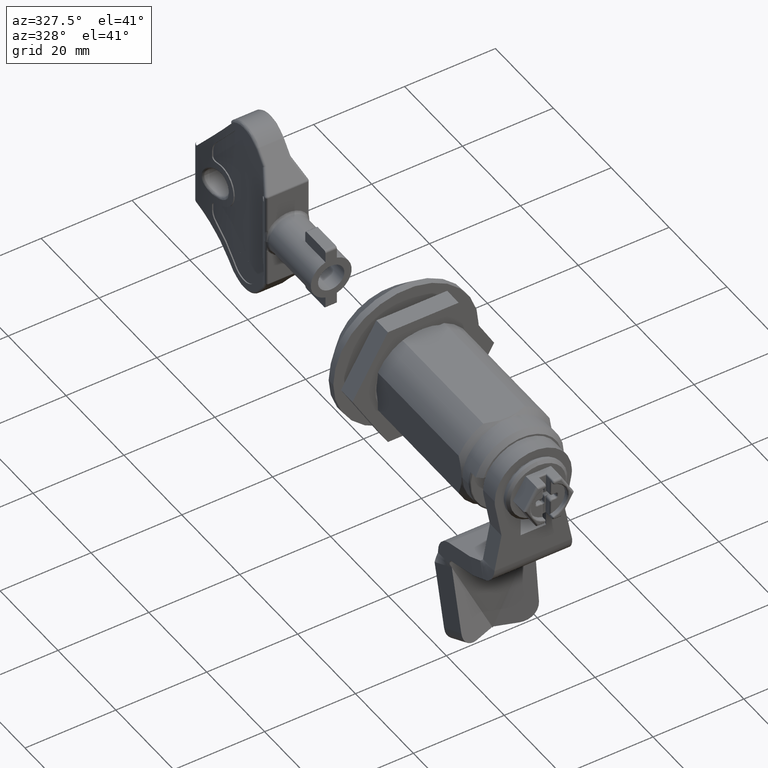
[diagram: clean part render]
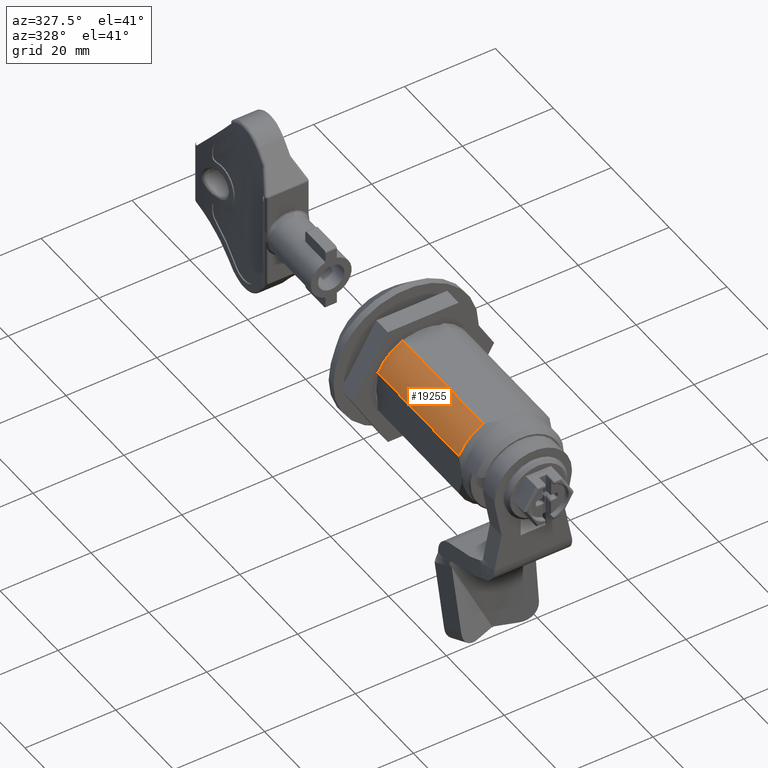
[diagram: same view with one face highlighted and labeled with its STEP entity id]
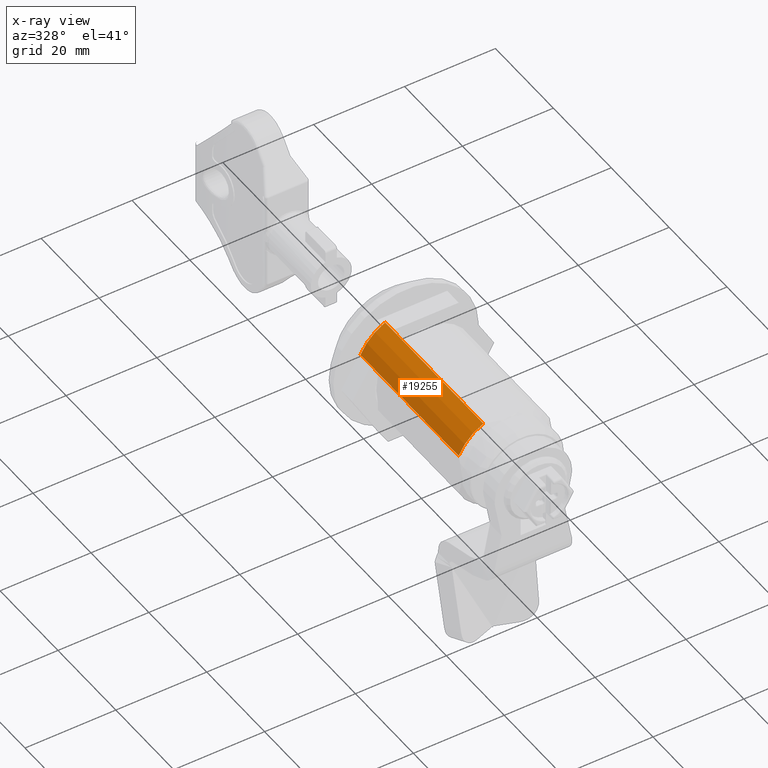
[diagram: x-ray of the same camera — body ghosted, the highlighted face saturated]
A machine part, auxiliary view. The second image highlights one B-rep face of the part: STEP entity #19255.
The next image is the same camera in x-ray: the body ghosted, the highlighted face saturated — about 0% of this face is hidden behind the body in this view.
In plain terms, the highlighted cylindrical surface (partial cylindrical patch) has radius 11 mm, axis along (-0, -1, -0).
Its self-contained STEP definition (entity closure, byte-faithful):
#966 = CARTESIAN_POINT ( 'NONE',  ( 9.993832724293671532, 49.64999999999998437, 1.500000000000003109 ) ) ;
#1082 = VERTEX_POINT ( 'NONE', #12690 ) ;
#1101 = DIRECTION ( 'NONE',  ( -1.000000000000000000, 6.308085367188389255E-16, -3.351170351318831977E-16 ) ) ;
#1498 = CARTESIAN_POINT ( 'NONE',  ( 5.411257029336197455, 15.75000000000031974, 11.49999999999961453 ) ) ;
#1946 = CARTESIAN_POINT ( 'NONE',  ( 5.411257029336986157, 49.64999999999998437, 11.49999999999962164 ) ) ;
#2946 = DIRECTION ( 'NONE',  ( 3.317293887944518980E-16, 1.000000000000000000, 1.941967155733531827E-16 ) ) ;
#3535 = DIRECTION ( 'NONE',  ( 3.317293887944518980E-16, 1.000000000000000000, 1.941967155733531827E-16 ) ) ;
#5222 = DIRECTION ( 'NONE',  ( 0.7071067811865477948, 0.0000000000000000000, -0.7071067811865472397 ) ) ;
#5419 = ORIENTED_EDGE ( 'NONE', *, *, #9924, .F. ) ;
#5707 = AXIS2_PLACEMENT_3D ( 'NONE', #7890, #19733, #5222 ) ;
#7216 = VECTOR ( 'NONE', #16180, 1000.000000000000000 ) ;
#7242 = CARTESIAN_POINT ( 'NONE',  ( 9.993832724293671532, 49.64999999999998437, 1.500000000000003109 ) ) ;
#7418 = VERTEX_POINT ( 'NONE', #1498 ) ;
#7558 = LINE ( 'NONE', #20350, #16219 ) ;
#7890 = CARTESIAN_POINT ( 'NONE',  ( 9.993832724293659098, 15.74999999999998579, 1.499999999999996669 ) ) ;
#9359 = EDGE_LOOP ( 'NONE', ( #13591, #15827, #5419, #12573 ) ) ;
#9512 = DIRECTION ( 'NONE',  ( -1.000000000000000000, 6.308085367188389255E-16, -3.351170351318831977E-16 ) ) ;
#9924 = EDGE_CURVE ( 'NONE', #15676, #1082, #7558, .T. ) ;
#11523 = EDGE_CURVE ( 'NONE', #1082, #12101, #22728, .T. ) ;
#11999 = CARTESIAN_POINT ( 'NONE',  ( 5.411257029336203672, 32.69999999999998863, 11.49999999999925748 ) ) ;
#12101 = VERTEX_POINT ( 'NONE', #1946 ) ;
#12516 = EDGE_CURVE ( 'NONE', #15676, #7418, #20298, .T. ) ;
#12573 = ORIENTED_EDGE ( 'NONE', *, *, #12516, .T. ) ;
#12690 = CARTESIAN_POINT ( 'NONE',  ( -0.006167275706561378690, 49.64999999999998437, 6.082575694955265178 ) ) ;
#13244 = AXIS2_PLACEMENT_3D ( 'NONE', #7242, #2946, #9512 ) ;
#13591 = ORIENTED_EDGE ( 'NONE', *, *, #14175, .F. ) ;
#14175 = EDGE_CURVE ( 'NONE', #12101, #7418, #20745, .T. ) ;
#15367 = DIRECTION ( 'NONE',  ( -3.317293887944518980E-16, -1.000000000000000000, -1.941967155733531827E-16 ) ) ;
#15676 = VERTEX_POINT ( 'NONE', #25636 ) ;
#15827 = ORIENTED_EDGE ( 'NONE', *, *, #11523, .F. ) ;
#16180 = DIRECTION ( 'NONE',  ( -3.317293887944518980E-16, -1.000000000000000000, -1.941967155733531827E-16 ) ) ;
#16219 = VECTOR ( 'NONE', #3535, 1000.000000000000000 ) ;
#19255 = ADVANCED_FACE ( 'NONE', ( #21293 ), #19398, .T. ) ;
#19398 = CYLINDRICAL_SURFACE ( 'NONE', #20811, 11.00000000000000000 ) ;
#19733 = DIRECTION ( 'NONE',  ( 3.317293887944518980E-16, 1.000000000000000000, 1.941967155733531827E-16 ) ) ;
#20298 = CIRCLE ( 'NONE', #5707, 10.99999999999996980 ) ;
#20350 = CARTESIAN_POINT ( 'NONE',  ( -0.006167275706901384491, 32.69999999999998153, 6.082575694954678980 ) ) ;
#20745 = LINE ( 'NONE', #11999, #7216 ) ;
#20811 = AXIS2_PLACEMENT_3D ( 'NONE', #966, #15367, #1101 ) ;
#21293 = FACE_OUTER_BOUND ( 'NONE', #9359, .T. ) ;
#22728 = CIRCLE ( 'NONE', #13244, 11.00000000000000000 ) ;
#25636 = CARTESIAN_POINT ( 'NONE',  ( -0.006167275706573521754, 15.75000000000000711, 6.082575694955230539 ) ) ;